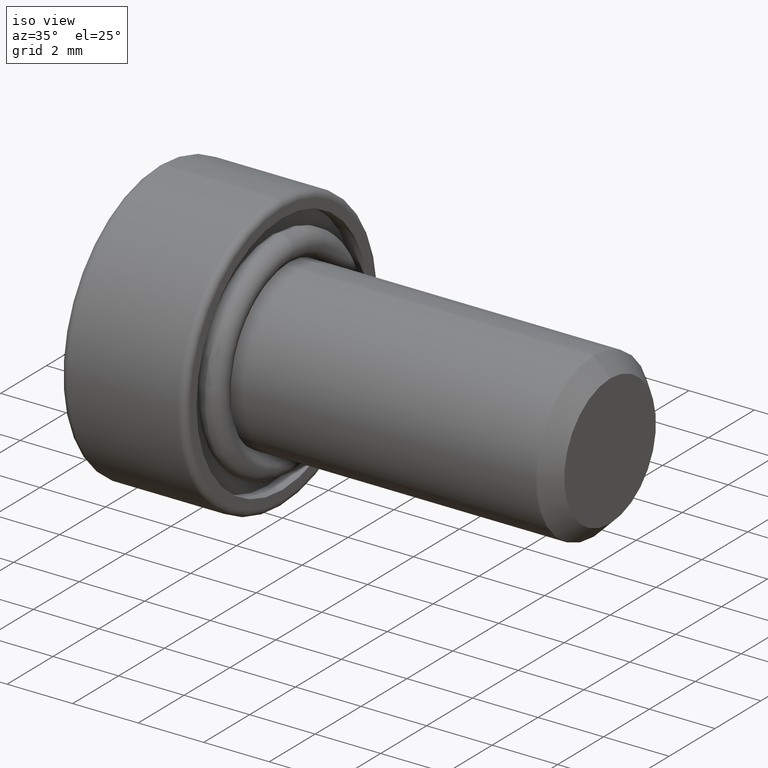
[diagram: clean part render]
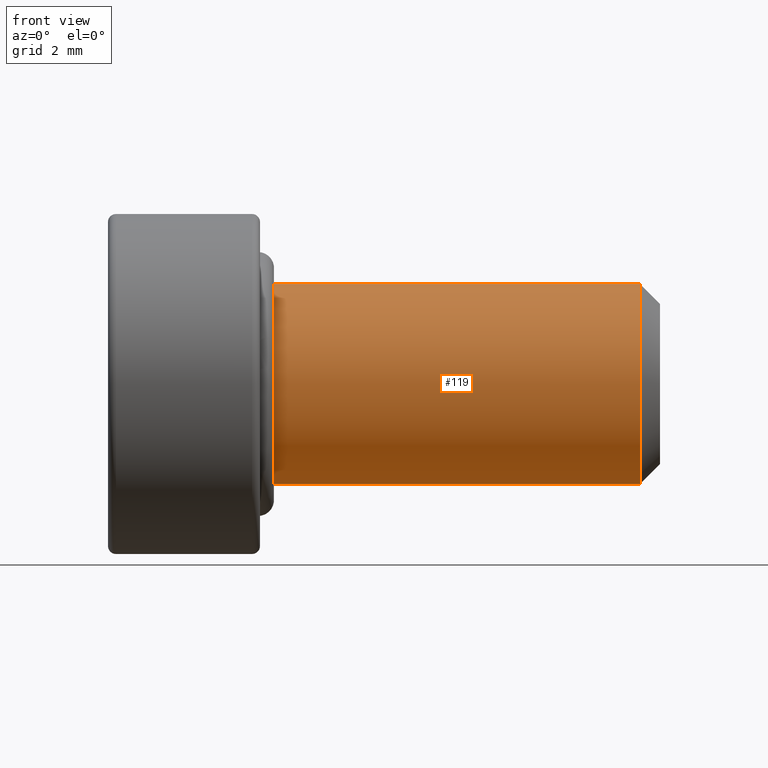
[diagram: tour spotlight — one face highlighted and labeled with its STEP entity id]
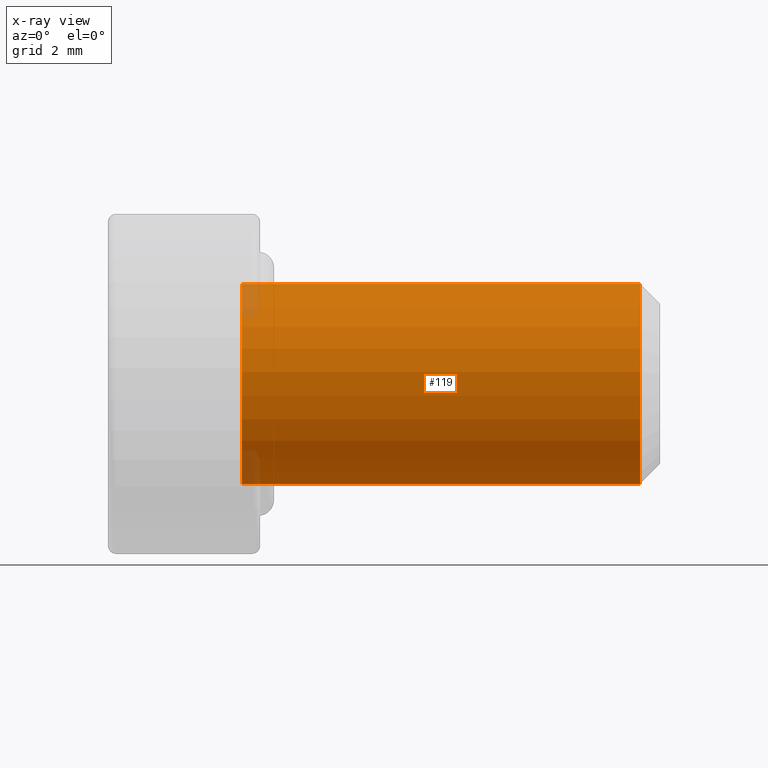
[diagram: x-ray of the same camera — body ghosted, this tour face saturated]
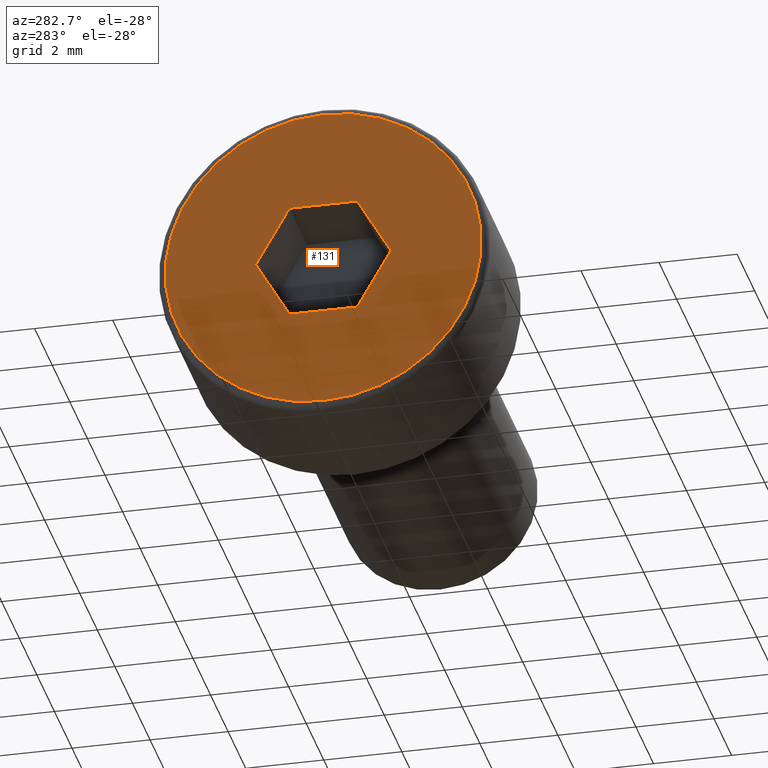
[diagram: tour spotlight — one face highlighted and labeled with its STEP entity id]
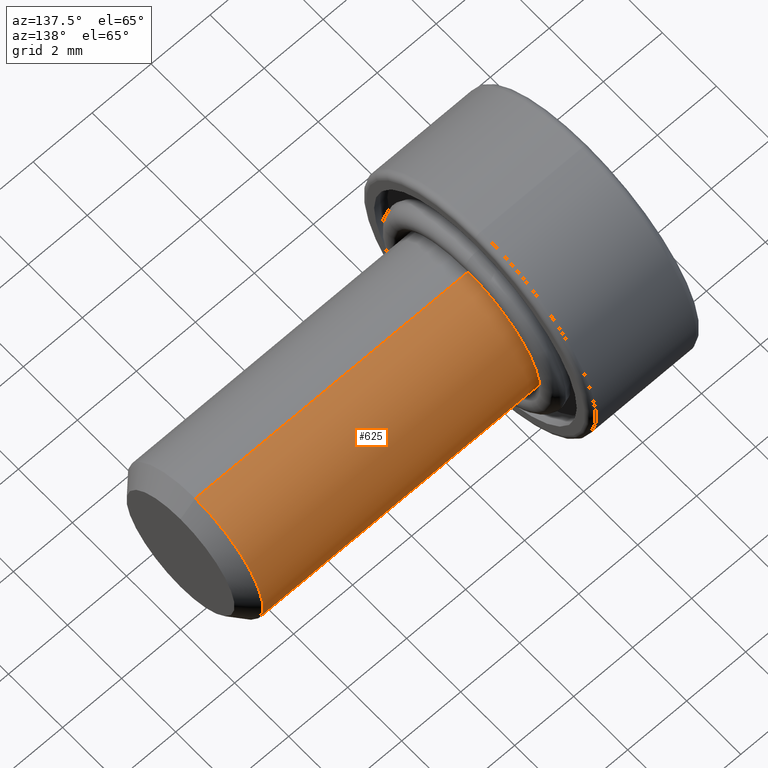
[diagram: tour spotlight — one face highlighted and labeled with its STEP entity id]
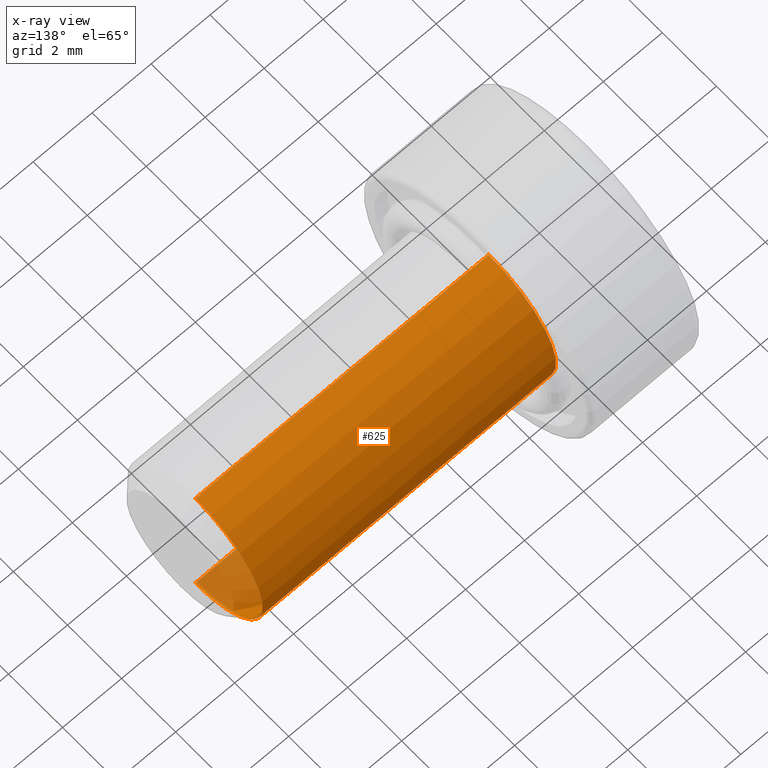
[diagram: x-ray of the same camera — body ghosted, this tour face saturated]
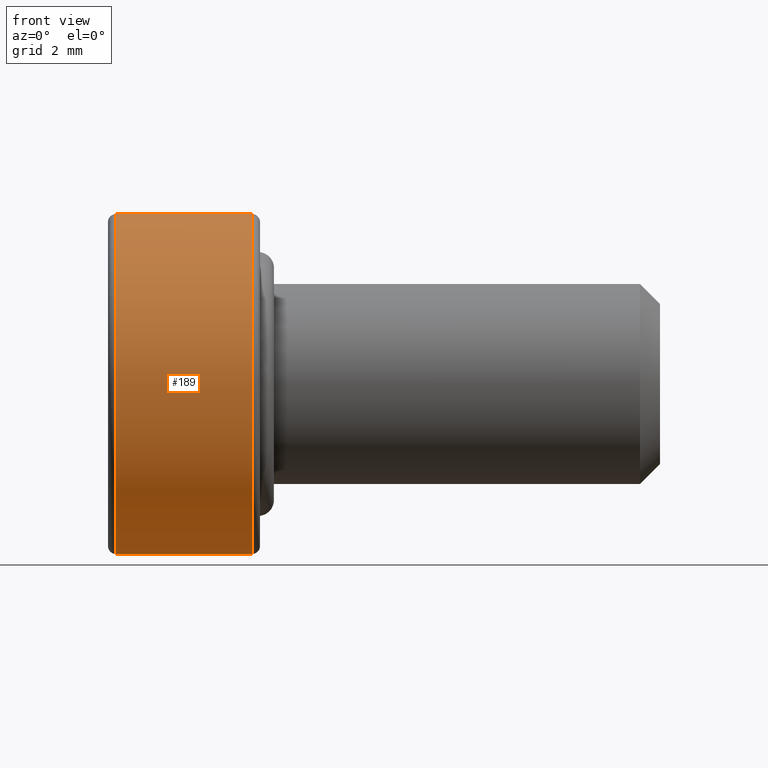
[diagram: tour spotlight — one face highlighted and labeled with its STEP entity id]
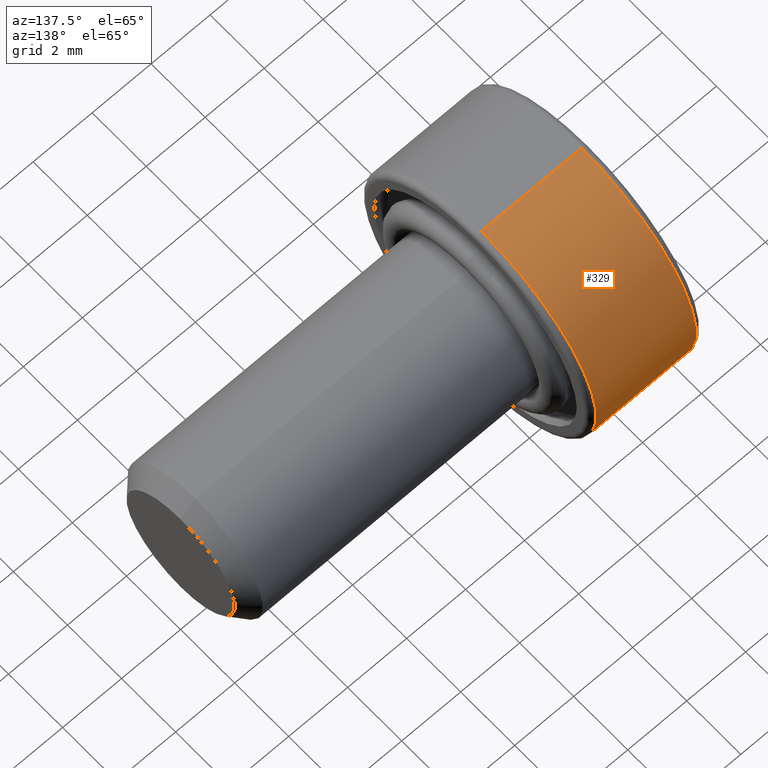
[diagram: tour spotlight — one face highlighted and labeled with its STEP entity id]
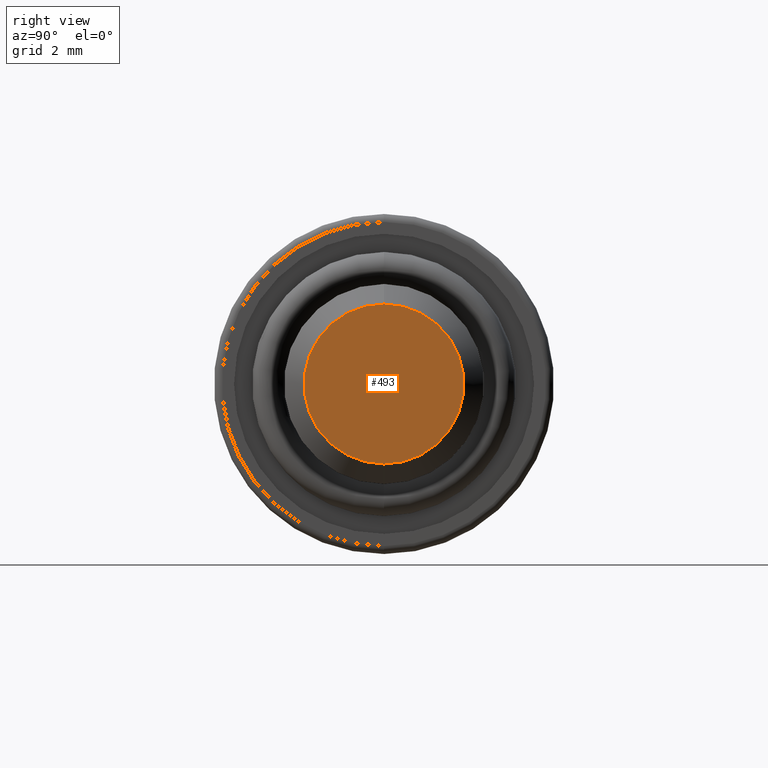
[diagram: tour spotlight — one face highlighted and labeled with its STEP entity id]
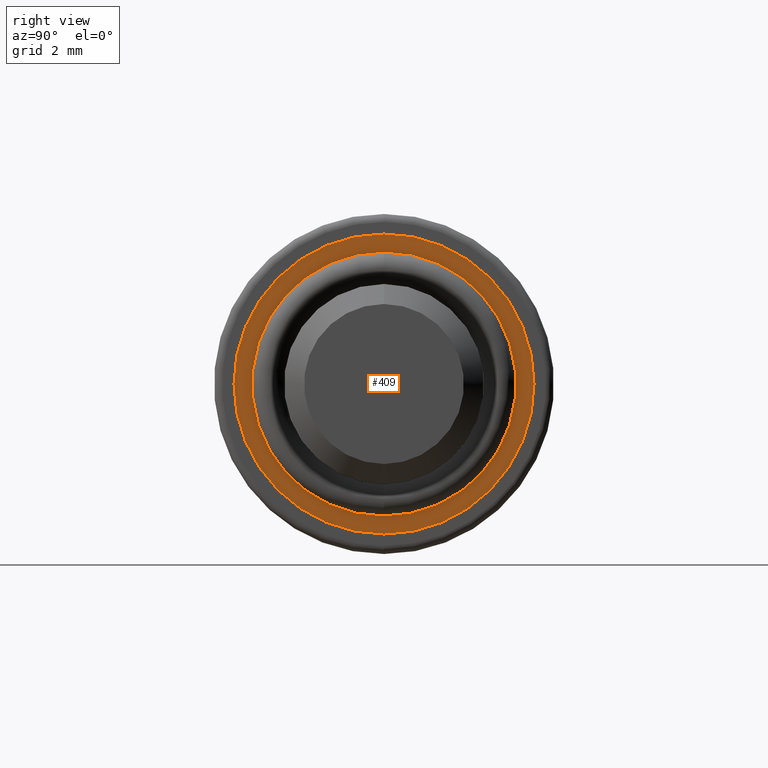
[diagram: tour spotlight — one face highlighted and labeled with its STEP entity id]
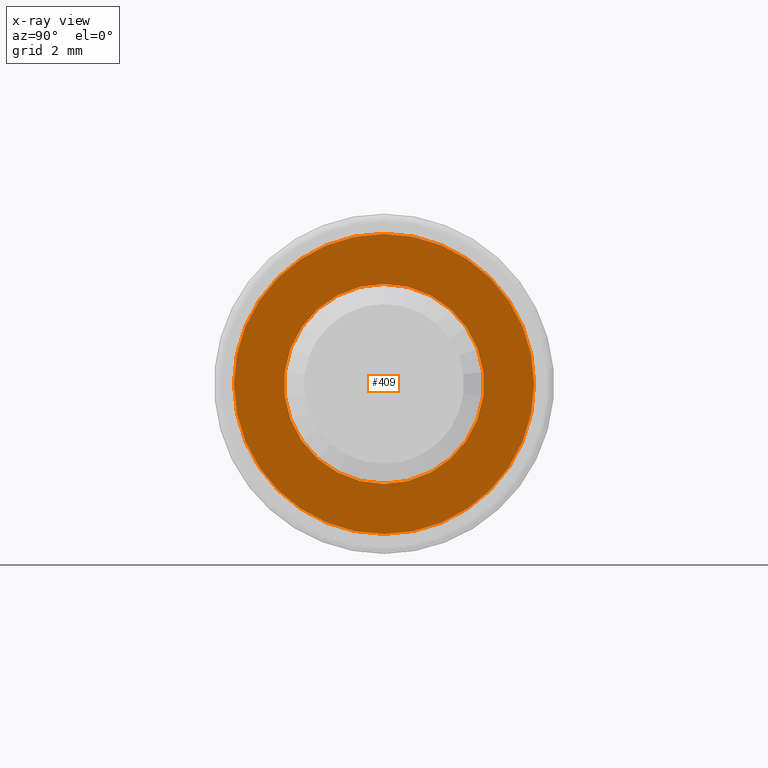
[diagram: x-ray of the same camera — body ghosted, this tour face saturated]
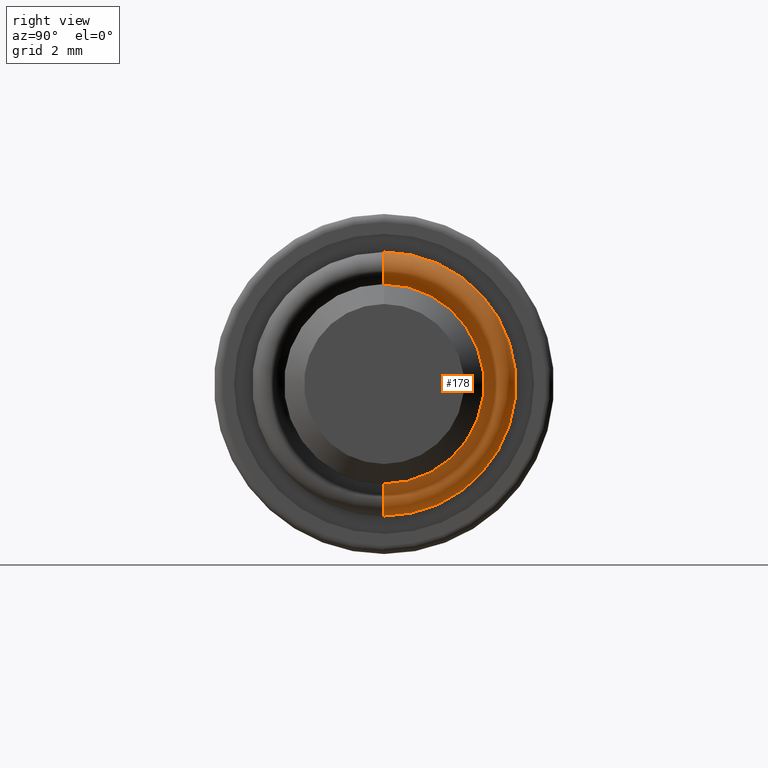
[diagram: tour spotlight — one face highlighted and labeled with its STEP entity id]
A machine part: a face-by-face anatomy tour. The part has 27 B-rep faces; the first image is the clean iso view, then the 8 largest visible faces are spotlighted one at a time (largest first), each with its STEP entity span.

Face 1 — front view, entity #119. An x-ray twin of the same camera follows (body ghosted, this face saturated) — the face is partly hidden behind the body. In plain terms, the highlighted cylindrical surface (partial cylindrical patch) has radius 2.5 mm, axis along (-1, -0, -0).
Definition (entity closure, byte-faithful):
#11 = CYLINDRICAL_SURFACE ( 'NONE', #643, 2.500000000000000000 ) ;
#57 = CARTESIAN_POINT ( 'NONE',  ( -0.4500000000000000100, 3.061616997868383100E-016, -2.500000000000000000 ) ) ;
#82 = AXIS2_PLACEMENT_3D ( 'NONE', #234, #241, #666 ) ;
#119 = ADVANCED_FACE ( 'NONE', ( #213 ), #11, .T. ) ;
#138 = EDGE_CURVE ( 'NONE', #384, #374, #677, .T. ) ;
#192 = VECTOR ( 'NONE', #378, 1000.000000000000000 ) ;
#209 = CARTESIAN_POINT ( 'NONE',  ( -0.4500000000000000100, 0.0000000000000000000, 2.500000000000000000 ) ) ;
#213 = FACE_OUTER_BOUND ( 'NONE', #783, .T. ) ;
#216 = VERTEX_POINT ( 'NONE', #57 ) ;
#218 = AXIS2_PLACEMENT_3D ( 'NONE', #633, #804, #250 ) ;
#234 = CARTESIAN_POINT ( 'NONE',  ( -0.4500000000000000100, 0.0000000000000000000, 0.0000000000000000000 ) ) ;
#241 = DIRECTION ( 'NONE',  ( 1.000000000000000000, 0.0000000000000000000, 0.0000000000000000000 ) ) ;
#250 = DIRECTION ( 'NONE',  ( 0.0000000000000000000, 0.0000000000000000000, -1.000000000000000000 ) ) ;
#281 = CARTESIAN_POINT ( 'NONE',  ( 10.00000000000000000, 3.061616997868383100E-016, -2.500000000000000000 ) ) ;
#313 = ORIENTED_EDGE ( 'NONE', *, *, #138, .T. ) ;
#322 = DIRECTION ( 'NONE',  ( 0.0000000000000000000, 0.0000000000000000000, 1.000000000000000000 ) ) ;
#348 = ORIENTED_EDGE ( 'NONE', *, *, #755, .T. ) ;
#365 = CARTESIAN_POINT ( 'NONE',  ( 9.500000000000000000, 0.0000000000000000000, 2.500000000000000000 ) ) ;
#374 = VERTEX_POINT ( 'NONE', #209 ) ;
#378 = DIRECTION ( 'NONE',  ( -1.000000000000000000, -0.0000000000000000000, -0.0000000000000000000 ) ) ;
#384 = VERTEX_POINT ( 'NONE', #365 ) ;
#385 = DIRECTION ( 'NONE',  ( -1.000000000000000000, -0.0000000000000000000, -0.0000000000000000000 ) ) ;
#388 = CARTESIAN_POINT ( 'NONE',  ( 10.00000000000000000, 0.0000000000000000000, 0.0000000000000000000 ) ) ;
#418 = CARTESIAN_POINT ( 'NONE',  ( 10.00000000000000000, 0.0000000000000000000, 2.500000000000000000 ) ) ;
#442 = CIRCLE ( 'NONE', #82, 2.500000000000000000 ) ;
#457 = CIRCLE ( 'NONE', #218, 2.500000000000000000 ) ;
#539 = VERTEX_POINT ( 'NONE', #545 ) ;
#545 = CARTESIAN_POINT ( 'NONE',  ( 9.500000000000000000, 3.061616997868383100E-016, -2.500000000000000000 ) ) ;
#600 = DIRECTION ( 'NONE',  ( -1.000000000000000000, -0.0000000000000000000, -0.0000000000000000000 ) ) ;
#618 = ORIENTED_EDGE ( 'NONE', *, *, #772, .T. ) ;
#621 = VECTOR ( 'NONE', #600, 1000.000000000000000 ) ;
#633 = CARTESIAN_POINT ( 'NONE',  ( 9.500000000000000000, 0.0000000000000000000, 0.0000000000000000000 ) ) ;
#643 = AXIS2_PLACEMENT_3D ( 'NONE', #388, #385, #322 ) ;
#666 = DIRECTION ( 'NONE',  ( 0.0000000000000000000, 0.0000000000000000000, -1.000000000000000000 ) ) ;
#673 = EDGE_CURVE ( 'NONE', #539, #216, #776, .T. ) ;
#677 = LINE ( 'NONE', #418, #192 ) ;
#755 = EDGE_CURVE ( 'NONE', #374, #216, #442, .T. ) ;
#772 = EDGE_CURVE ( 'NONE', #539, #384, #457, .T. ) ;
#776 = LINE ( 'NONE', #281, #621 ) ;
#783 = EDGE_LOOP ( 'NONE', ( #793, #618, #313, #348 ) ) ;
#793 = ORIENTED_EDGE ( 'NONE', *, *, #673, .F. ) ;
#804 = DIRECTION ( 'NONE',  ( -1.000000000000000000, 0.0000000000000000000, 0.0000000000000000000 ) ) ;

Face 2 — auxiliary view, entity #131. In plain terms, the highlighted planar face has unit normal (1, 0, 0).
Definition (entity closure, byte-faithful):
#3 = ORIENTED_EDGE ( 'NONE', *, *, #347, .F. ) ;
#29 = VERTEX_POINT ( 'NONE', #76 ) ;
#32 = CARTESIAN_POINT ( 'NONE',  ( -3.799999999999999800, 0.8660254037844360400, -1.499999999999995300 ) ) ;
#34 = DIRECTION ( 'NONE',  ( 0.0000000000000000000, 0.0000000000000000000, -1.000000000000000000 ) ) ;
#36 = FACE_OUTER_BOUND ( 'NONE', #93, .T. ) ;
#51 = DIRECTION ( 'NONE',  ( 0.0000000000000000000, -1.000000000000000000, -1.251928832280969600E-016 ) ) ;
#65 = CARTESIAN_POINT ( 'NONE',  ( -3.799999999999999800, -0.8660254037844348200, 1.499999999999994400 ) ) ;
#68 = EDGE_CURVE ( 'NONE', #398, #29, #239, .T. ) ;
#70 = VECTOR ( 'NONE', #51, 1000.000000000000000 ) ;
#76 = CARTESIAN_POINT ( 'NONE',  ( -3.799999999999999800, 5.082284216461517100E-016, 4.050000000000001600 ) ) ;
#93 = EDGE_LOOP ( 'NONE', ( #631, #558 ) ) ;
#116 = EDGE_CURVE ( 'NONE', #623, #553, #555, .T. ) ;
#118 = CIRCLE ( 'NONE', #321, 4.050000000000001600 ) ;
#130 = VERTEX_POINT ( 'NONE', #447 ) ;
#131 = ADVANCED_FACE ( 'NONE', ( #358, #36 ), #430, .F. ) ;
#152 = DIRECTION ( 'NONE',  ( 0.0000000000000000000, 0.0000000000000000000, -1.000000000000000000 ) ) ;
#167 = DIRECTION ( 'NONE',  ( -1.000000000000000000, -0.0000000000000000000, -0.0000000000000000000 ) ) ;
#170 = ORIENTED_EDGE ( 'NONE', *, *, #208, .F. ) ;
#185 = VERTEX_POINT ( 'NONE', #602 ) ;
#208 = EDGE_CURVE ( 'NONE', #185, #649, #266, .T. ) ;
#214 = DIRECTION ( 'NONE',  ( -0.0000000000000000000, 1.000000000000000000, 8.763501825966792400E-016 ) ) ;
#230 = CARTESIAN_POINT ( 'NONE',  ( -3.799999999999999800, 0.0000000000000000000, 0.0000000000000000000 ) ) ;
#231 = ORIENTED_EDGE ( 'NONE', *, *, #587, .F. ) ;
#235 = DIRECTION ( 'NONE',  ( -1.000000000000000000, -0.0000000000000000000, -0.0000000000000000000 ) ) ;
#236 = CARTESIAN_POINT ( 'NONE',  ( -3.799999999999999800, -0.8660254037844362700, -1.499999999999995600 ) ) ;
#239 = CIRCLE ( 'NONE', #521, 4.050000000000001600 ) ;
#266 = LINE ( 'NONE', #494, #747 ) ;
#288 = DIRECTION ( 'NONE',  ( 0.0000000000000000000, 0.0000000000000000000, -1.000000000000000000 ) ) ;
#289 = CARTESIAN_POINT ( 'NONE',  ( -3.799999999999999800, 0.0000000000000000000, 0.0000000000000000000 ) ) ;
#290 = VECTOR ( 'NONE', #214, 1000.000000000000000 ) ;
#316 = EDGE_LOOP ( 'NONE', ( #3, #170, #231, #650, #749, #481 ) ) ;
#321 = AXIS2_PLACEMENT_3D ( 'NONE', #617, #167, #34 ) ;
#324 = VERTEX_POINT ( 'NONE', #343 ) ;
#343 = CARTESIAN_POINT ( 'NONE',  ( -3.799999999999999800, -0.8660254037844362700, -1.499999999999995600 ) ) ;
#347 = EDGE_CURVE ( 'NONE', #649, #324, #455, .T. ) ;
#353 = DIRECTION ( 'NONE',  ( 0.0000000000000000000, -0.4999999999999998900, 0.8660254037844386000 ) ) ;
#355 = DIRECTION ( 'NONE',  ( 0.0000000000000000000, 0.5000000000000011100, 0.8660254037844380400 ) ) ;
#358 = FACE_BOUND ( 'NONE', #316, .T. ) ;
#368 = CARTESIAN_POINT ( 'NONE',  ( -3.799999999999999800, -1.732050807568872500, 3.588059837047438300E-016 ) ) ;
#398 = VERTEX_POINT ( 'NONE', #470 ) ;
#403 = VECTOR ( 'NONE', #768, 1000.000000000000000 ) ;
#430 = PLANE ( 'NONE',  #713 ) ;
#447 = CARTESIAN_POINT ( 'NONE',  ( -3.799999999999999800, 0.8660254037844367100, 1.499999999999996000 ) ) ;
#455 = LINE ( 'NONE', #655, #70 ) ;
#470 = CARTESIAN_POINT ( 'NONE',  ( -3.799999999999999800, 0.0000000000000000000, -4.050000000000001600 ) ) ;
#481 = ORIENTED_EDGE ( 'NONE', *, *, #640, .F. ) ;
#494 = CARTESIAN_POINT ( 'NONE',  ( -3.799999999999999800, 0.8660254037844360400, -1.499999999999995300 ) ) ;
#518 = EDGE_CURVE ( 'NONE', #553, #130, #763, .T. ) ;
#521 = AXIS2_PLACEMENT_3D ( 'NONE', #230, #235, #288 ) ;
#553 = VERTEX_POINT ( 'NONE', #65 ) ;
#555 = LINE ( 'NONE', #368, #686 ) ;
#558 = ORIENTED_EDGE ( 'NONE', *, *, #813, .T. ) ;
#565 = LINE ( 'NONE', #642, #403 ) ;
#587 = EDGE_CURVE ( 'NONE', #130, #185, #565, .T. ) ;
#602 = CARTESIAN_POINT ( 'NONE',  ( -3.799999999999999800, 1.732050807568872500, -3.579244311116258100E-017 ) ) ;
#617 = CARTESIAN_POINT ( 'NONE',  ( -3.799999999999999800, 0.0000000000000000000, 0.0000000000000000000 ) ) ;
#623 = VERTEX_POINT ( 'NONE', #652 ) ;
#631 = ORIENTED_EDGE ( 'NONE', *, *, #68, .T. ) ;
#640 = EDGE_CURVE ( 'NONE', #324, #623, #693, .T. ) ;
#642 = CARTESIAN_POINT ( 'NONE',  ( -3.799999999999999800, 1.732050807568872500, -3.579244311116258100E-017 ) ) ;
#649 = VERTEX_POINT ( 'NONE', #32 ) ;
#650 = ORIENTED_EDGE ( 'NONE', *, *, #518, .F. ) ;
#652 = CARTESIAN_POINT ( 'NONE',  ( -3.799999999999999800, -1.732050807568872500, 3.588059837047438300E-016 ) ) ;
#655 = CARTESIAN_POINT ( 'NONE',  ( -3.799999999999999800, 0.8660254037844360400, -1.499999999999995300 ) ) ;
#663 = VECTOR ( 'NONE', #353, 1000.000000000000200 ) ;
#686 = VECTOR ( 'NONE', #355, 1000.000000000000100 ) ;
#693 = LINE ( 'NONE', #236, #663 ) ;
#711 = DIRECTION ( 'NONE',  ( -0.0000000000000000000, -0.5000000000000003300, -0.8660254037844383700 ) ) ;
#713 = AXIS2_PLACEMENT_3D ( 'NONE', #289, #738, #152 ) ;
#738 = DIRECTION ( 'NONE',  ( 1.000000000000000000, 0.0000000000000000000, 0.0000000000000000000 ) ) ;
#747 = VECTOR ( 'NONE', #711, 1000.000000000000100 ) ;
#749 = ORIENTED_EDGE ( 'NONE', *, *, #116, .F. ) ;
#759 = CARTESIAN_POINT ( 'NONE',  ( -3.799999999999999800, 0.8660254037844367100, 1.499999999999996000 ) ) ;
#763 = LINE ( 'NONE', #759, #290 ) ;
#768 = DIRECTION ( 'NONE',  ( -0.0000000000000000000, 0.4999999999999998300, -0.8660254037844387100 ) ) ;
#813 = EDGE_CURVE ( 'NONE', #29, #398, #118, .T. ) ;

Face 3 — auxiliary view, entity #625. An x-ray twin of the same camera follows (body ghosted, this face saturated) — the face is partly hidden behind the body. In plain terms, the highlighted cylindrical surface (partial cylindrical patch) has radius 2.5 mm, axis along (-1, -0, -0).
Definition (entity closure, byte-faithful):
#46 = ORIENTED_EDGE ( 'NONE', *, *, #138, .F. ) ;
#57 = CARTESIAN_POINT ( 'NONE',  ( -0.4500000000000000100, 3.061616997868383100E-016, -2.500000000000000000 ) ) ;
#101 = CIRCLE ( 'NONE', #264, 2.500000000000000000 ) ;
#138 = EDGE_CURVE ( 'NONE', #384, #374, #677, .T. ) ;
#172 = AXIS2_PLACEMENT_3D ( 'NONE', #315, #423, #556 ) ;
#192 = VECTOR ( 'NONE', #378, 1000.000000000000000 ) ;
#201 = CYLINDRICAL_SURFACE ( 'NONE', #172, 2.500000000000000000 ) ;
#209 = CARTESIAN_POINT ( 'NONE',  ( -0.4500000000000000100, 0.0000000000000000000, 2.500000000000000000 ) ) ;
#216 = VERTEX_POINT ( 'NONE', #57 ) ;
#243 = ORIENTED_EDGE ( 'NONE', *, *, #802, .T. ) ;
#248 = FACE_OUTER_BOUND ( 'NONE', #688, .T. ) ;
#264 = AXIS2_PLACEMENT_3D ( 'NONE', #295, #301, #327 ) ;
#281 = CARTESIAN_POINT ( 'NONE',  ( 10.00000000000000000, 3.061616997868383100E-016, -2.500000000000000000 ) ) ;
#295 = CARTESIAN_POINT ( 'NONE',  ( -0.4500000000000000100, 0.0000000000000000000, 0.0000000000000000000 ) ) ;
#301 = DIRECTION ( 'NONE',  ( 1.000000000000000000, 0.0000000000000000000, 0.0000000000000000000 ) ) ;
#305 = DIRECTION ( 'NONE',  ( -1.000000000000000000, 0.0000000000000000000, 0.0000000000000000000 ) ) ;
#315 = CARTESIAN_POINT ( 'NONE',  ( 10.00000000000000000, 0.0000000000000000000, 0.0000000000000000000 ) ) ;
#327 = DIRECTION ( 'NONE',  ( 0.0000000000000000000, 0.0000000000000000000, -1.000000000000000000 ) ) ;
#365 = CARTESIAN_POINT ( 'NONE',  ( 9.500000000000000000, 0.0000000000000000000, 2.500000000000000000 ) ) ;
#374 = VERTEX_POINT ( 'NONE', #209 ) ;
#378 = DIRECTION ( 'NONE',  ( -1.000000000000000000, -0.0000000000000000000, -0.0000000000000000000 ) ) ;
#384 = VERTEX_POINT ( 'NONE', #365 ) ;
#410 = ORIENTED_EDGE ( 'NONE', *, *, #589, .T. ) ;
#418 = CARTESIAN_POINT ( 'NONE',  ( 10.00000000000000000, 0.0000000000000000000, 2.500000000000000000 ) ) ;
#423 = DIRECTION ( 'NONE',  ( -1.000000000000000000, -0.0000000000000000000, -0.0000000000000000000 ) ) ;
#477 = ORIENTED_EDGE ( 'NONE', *, *, #673, .T. ) ;
#491 = CARTESIAN_POINT ( 'NONE',  ( 9.500000000000000000, 0.0000000000000000000, 0.0000000000000000000 ) ) ;
#513 = DIRECTION ( 'NONE',  ( 0.0000000000000000000, 0.0000000000000000000, -1.000000000000000000 ) ) ;
#539 = VERTEX_POINT ( 'NONE', #545 ) ;
#545 = CARTESIAN_POINT ( 'NONE',  ( 9.500000000000000000, 3.061616997868383100E-016, -2.500000000000000000 ) ) ;
#556 = DIRECTION ( 'NONE',  ( 0.0000000000000000000, 0.0000000000000000000, 1.000000000000000000 ) ) ;
#589 = EDGE_CURVE ( 'NONE', #384, #539, #607, .T. ) ;
#600 = DIRECTION ( 'NONE',  ( -1.000000000000000000, -0.0000000000000000000, -0.0000000000000000000 ) ) ;
#607 = CIRCLE ( 'NONE', #785, 2.500000000000000000 ) ;
#621 = VECTOR ( 'NONE', #600, 1000.000000000000000 ) ;
#625 = ADVANCED_FACE ( 'NONE', ( #248 ), #201, .T. ) ;
#673 = EDGE_CURVE ( 'NONE', #539, #216, #776, .T. ) ;
#677 = LINE ( 'NONE', #418, #192 ) ;
#688 = EDGE_LOOP ( 'NONE', ( #410, #477, #243, #46 ) ) ;
#776 = LINE ( 'NONE', #281, #621 ) ;
#785 = AXIS2_PLACEMENT_3D ( 'NONE', #491, #305, #513 ) ;
#802 = EDGE_CURVE ( 'NONE', #216, #374, #101, .T. ) ;

Face 4 — front view, entity #189. In plain terms, the highlighted cylindrical surface (partial cylindrical patch) has radius 4.25 mm, axis along (1, 0, 0).
Definition (entity closure, byte-faithful):
#18 = VERTEX_POINT ( 'NONE', #371 ) ;
#21 = ORIENTED_EDGE ( 'NONE', *, *, #188, .T. ) ;
#45 = ORIENTED_EDGE ( 'NONE', *, *, #732, .T. ) ;
#85 = LINE ( 'NONE', #465, #575 ) ;
#87 = CYLINDRICAL_SURFACE ( 'NONE', #424, 4.250000000000000900 ) ;
#110 = FACE_OUTER_BOUND ( 'NONE', #407, .T. ) ;
#128 = CIRCLE ( 'NONE', #246, 4.250000000000000900 ) ;
#144 = DIRECTION ( 'NONE',  ( 1.000000000000000000, 0.0000000000000000000, 0.0000000000000000000 ) ) ;
#159 = DIRECTION ( 'NONE',  ( 0.0000000000000000000, 0.0000000000000000000, -1.000000000000000000 ) ) ;
#163 = DIRECTION ( 'NONE',  ( 1.000000000000000000, 0.0000000000000000000, 0.0000000000000000000 ) ) ;
#188 = EDGE_CURVE ( 'NONE', #583, #684, #128, .T. ) ;
#189 = ADVANCED_FACE ( 'NONE', ( #110 ), #87, .T. ) ;
#246 = AXIS2_PLACEMENT_3D ( 'NONE', #798, #500, #159 ) ;
#258 = VERTEX_POINT ( 'NONE', #436 ) ;
#350 = CARTESIAN_POINT ( 'NONE',  ( -0.2000000000000000900, 0.0000000000000000000, 0.0000000000000000000 ) ) ;
#362 = CARTESIAN_POINT ( 'NONE',  ( -3.600000000000000100, 5.204748896376250700E-016, 4.250000000000000900 ) ) ;
#371 = CARTESIAN_POINT ( 'NONE',  ( -0.2000000000000000900, 5.204748896376250700E-016, 4.250000000000000900 ) ) ;
#407 = EDGE_LOOP ( 'NONE', ( #476, #21, #45, #775 ) ) ;
#411 = DIRECTION ( 'NONE',  ( -1.000000000000000000, -0.0000000000000000000, -0.0000000000000000000 ) ) ;
#424 = AXIS2_PLACEMENT_3D ( 'NONE', #478, #535, #541 ) ;
#434 = CARTESIAN_POINT ( 'NONE',  ( -3.600000000000000100, 0.0000000000000000000, -4.250000000000000900 ) ) ;
#436 = CARTESIAN_POINT ( 'NONE',  ( -0.2000000000000000900, 0.0000000000000000000, -4.250000000000000900 ) ) ;
#465 = CARTESIAN_POINT ( 'NONE',  ( -3.799999999999999800, 5.204748896376250700E-016, 4.250000000000000900 ) ) ;
#476 = ORIENTED_EDGE ( 'NONE', *, *, #524, .F. ) ;
#478 = CARTESIAN_POINT ( 'NONE',  ( -3.799999999999999800, 0.0000000000000000000, 0.0000000000000000000 ) ) ;
#500 = DIRECTION ( 'NONE',  ( 1.000000000000000000, 0.0000000000000000000, 0.0000000000000000000 ) ) ;
#519 = DIRECTION ( 'NONE',  ( 0.0000000000000000000, 0.0000000000000000000, -1.000000000000000000 ) ) ;
#524 = EDGE_CURVE ( 'NONE', #583, #18, #85, .T. ) ;
#535 = DIRECTION ( 'NONE',  ( 1.000000000000000000, 0.0000000000000000000, 0.0000000000000000000 ) ) ;
#541 = DIRECTION ( 'NONE',  ( 0.0000000000000000000, 0.0000000000000000000, -1.000000000000000000 ) ) ;
#554 = EDGE_CURVE ( 'NONE', #258, #18, #745, .T. ) ;
#575 = VECTOR ( 'NONE', #144, 1000.000000000000000 ) ;
#583 = VERTEX_POINT ( 'NONE', #362 ) ;
#595 = VECTOR ( 'NONE', #163, 1000.000000000000000 ) ;
#684 = VERTEX_POINT ( 'NONE', #434 ) ;
#715 = CARTESIAN_POINT ( 'NONE',  ( -3.799999999999999800, 0.0000000000000000000, -4.250000000000000900 ) ) ;
#732 = EDGE_CURVE ( 'NONE', #684, #258, #756, .T. ) ;
#741 = AXIS2_PLACEMENT_3D ( 'NONE', #350, #411, #519 ) ;
#745 = CIRCLE ( 'NONE', #741, 4.250000000000000900 ) ;
#756 = LINE ( 'NONE', #715, #595 ) ;
#775 = ORIENTED_EDGE ( 'NONE', *, *, #554, .T. ) ;
#798 = CARTESIAN_POINT ( 'NONE',  ( -3.600000000000000100, 0.0000000000000000000, 0.0000000000000000000 ) ) ;

Face 5 — auxiliary view, entity #329. In plain terms, the highlighted cylindrical surface (partial cylindrical patch) has radius 4.25 mm, axis along (1, 0, 0).
Definition (entity closure, byte-faithful):
#6 = EDGE_CURVE ( 'NONE', #684, #583, #279, .T. ) ;
#18 = VERTEX_POINT ( 'NONE', #371 ) ;
#31 = EDGE_LOOP ( 'NONE', ( #483, #107, #269, #332 ) ) ;
#85 = LINE ( 'NONE', #465, #575 ) ;
#107 = ORIENTED_EDGE ( 'NONE', *, *, #524, .T. ) ;
#117 = FACE_OUTER_BOUND ( 'NONE', #31, .T. ) ;
#144 = DIRECTION ( 'NONE',  ( 1.000000000000000000, 0.0000000000000000000, 0.0000000000000000000 ) ) ;
#163 = DIRECTION ( 'NONE',  ( 1.000000000000000000, 0.0000000000000000000, 0.0000000000000000000 ) ) ;
#206 = EDGE_CURVE ( 'NONE', #18, #258, #764, .T. ) ;
#258 = VERTEX_POINT ( 'NONE', #436 ) ;
#269 = ORIENTED_EDGE ( 'NONE', *, *, #206, .T. ) ;
#277 = CYLINDRICAL_SURFACE ( 'NONE', #588, 4.250000000000000900 ) ;
#279 = CIRCLE ( 'NONE', #314, 4.250000000000000900 ) ;
#291 = DIRECTION ( 'NONE',  ( 0.0000000000000000000, 0.0000000000000000000, -1.000000000000000000 ) ) ;
#314 = AXIS2_PLACEMENT_3D ( 'NONE', #440, #487, #807 ) ;
#329 = ADVANCED_FACE ( 'NONE', ( #117 ), #277, .T. ) ;
#332 = ORIENTED_EDGE ( 'NONE', *, *, #732, .F. ) ;
#362 = CARTESIAN_POINT ( 'NONE',  ( -3.600000000000000100, 5.204748896376250700E-016, 4.250000000000000900 ) ) ;
#371 = CARTESIAN_POINT ( 'NONE',  ( -0.2000000000000000900, 5.204748896376250700E-016, 4.250000000000000900 ) ) ;
#386 = AXIS2_PLACEMENT_3D ( 'NONE', #421, #729, #291 ) ;
#400 = DIRECTION ( 'NONE',  ( 0.0000000000000000000, 0.0000000000000000000, -1.000000000000000000 ) ) ;
#416 = CARTESIAN_POINT ( 'NONE',  ( -3.799999999999999800, 0.0000000000000000000, 0.0000000000000000000 ) ) ;
#421 = CARTESIAN_POINT ( 'NONE',  ( -0.2000000000000000900, 0.0000000000000000000, 0.0000000000000000000 ) ) ;
#434 = CARTESIAN_POINT ( 'NONE',  ( -3.600000000000000100, 0.0000000000000000000, -4.250000000000000900 ) ) ;
#436 = CARTESIAN_POINT ( 'NONE',  ( -0.2000000000000000900, 0.0000000000000000000, -4.250000000000000900 ) ) ;
#440 = CARTESIAN_POINT ( 'NONE',  ( -3.600000000000000100, 0.0000000000000000000, 0.0000000000000000000 ) ) ;
#465 = CARTESIAN_POINT ( 'NONE',  ( -3.799999999999999800, 5.204748896376250700E-016, 4.250000000000000900 ) ) ;
#483 = ORIENTED_EDGE ( 'NONE', *, *, #6, .T. ) ;
#487 = DIRECTION ( 'NONE',  ( 1.000000000000000000, 0.0000000000000000000, 0.0000000000000000000 ) ) ;
#524 = EDGE_CURVE ( 'NONE', #583, #18, #85, .T. ) ;
#575 = VECTOR ( 'NONE', #144, 1000.000000000000000 ) ;
#583 = VERTEX_POINT ( 'NONE', #362 ) ;
#588 = AXIS2_PLACEMENT_3D ( 'NONE', #416, #704, #400 ) ;
#595 = VECTOR ( 'NONE', #163, 1000.000000000000000 ) ;
#684 = VERTEX_POINT ( 'NONE', #434 ) ;
#704 = DIRECTION ( 'NONE',  ( 1.000000000000000000, 0.0000000000000000000, 0.0000000000000000000 ) ) ;
#715 = CARTESIAN_POINT ( 'NONE',  ( -3.799999999999999800, 0.0000000000000000000, -4.250000000000000900 ) ) ;
#729 = DIRECTION ( 'NONE',  ( -1.000000000000000000, -0.0000000000000000000, -0.0000000000000000000 ) ) ;
#732 = EDGE_CURVE ( 'NONE', #684, #258, #756, .T. ) ;
#756 = LINE ( 'NONE', #715, #595 ) ;
#764 = CIRCLE ( 'NONE', #386, 4.250000000000000900 ) ;
#807 = DIRECTION ( 'NONE',  ( 0.0000000000000000000, 0.0000000000000000000, -1.000000000000000000 ) ) ;

Face 6 — right view, entity #493. In plain terms, the highlighted planar face has unit normal (1, 0, 0).
Definition (entity closure, byte-faithful):
#58 = CIRCLE ( 'NONE', #546, 2.000000000000001800 ) ;
#137 = DIRECTION ( 'NONE',  ( 1.000000000000000000, 0.0000000000000000000, 0.0000000000000000000 ) ) ;
#161 = EDGE_CURVE ( 'NONE', #730, #271, #506, .T. ) ;
#224 = CARTESIAN_POINT ( 'NONE',  ( 10.00000000000000000, 0.0000000000000000000, 2.000000000000001800 ) ) ;
#240 = EDGE_CURVE ( 'NONE', #271, #730, #58, .T. ) ;
#271 = VERTEX_POINT ( 'NONE', #795 ) ;
#337 = DIRECTION ( 'NONE',  ( 0.0000000000000000000, 0.0000000000000000000, -1.000000000000000000 ) ) ;
#357 = PLANE ( 'NONE',  #624 ) ;
#433 = DIRECTION ( 'NONE',  ( 0.0000000000000000000, 0.0000000000000000000, -1.000000000000000000 ) ) ;
#473 = EDGE_LOOP ( 'NONE', ( #634, #740 ) ) ;
#493 = ADVANCED_FACE ( 'NONE', ( #630 ), #357, .T. ) ;
#505 = CARTESIAN_POINT ( 'NONE',  ( 10.00000000000000000, 0.0000000000000000000, 0.0000000000000000000 ) ) ;
#506 = CIRCLE ( 'NONE', #601, 2.000000000000001800 ) ;
#546 = AXIS2_PLACEMENT_3D ( 'NONE', #769, #605, #433 ) ;
#601 = AXIS2_PLACEMENT_3D ( 'NONE', #505, #680, #716 ) ;
#605 = DIRECTION ( 'NONE',  ( 1.000000000000000000, 0.0000000000000000000, 0.0000000000000000000 ) ) ;
#624 = AXIS2_PLACEMENT_3D ( 'NONE', #658, #137, #337 ) ;
#630 = FACE_OUTER_BOUND ( 'NONE', #473, .T. ) ;
#634 = ORIENTED_EDGE ( 'NONE', *, *, #161, .T. ) ;
#658 = CARTESIAN_POINT ( 'NONE',  ( 10.00000000000000000, 0.0000000000000000000, 0.0000000000000000000 ) ) ;
#680 = DIRECTION ( 'NONE',  ( 1.000000000000000000, 0.0000000000000000000, 0.0000000000000000000 ) ) ;
#716 = DIRECTION ( 'NONE',  ( 0.0000000000000000000, 0.0000000000000000000, -1.000000000000000000 ) ) ;
#730 = VERTEX_POINT ( 'NONE', #224 ) ;
#740 = ORIENTED_EDGE ( 'NONE', *, *, #240, .T. ) ;
#769 = CARTESIAN_POINT ( 'NONE',  ( 10.00000000000000000, 0.0000000000000000000, 0.0000000000000000000 ) ) ;
#795 = CARTESIAN_POINT ( 'NONE',  ( 10.00000000000000000, 2.755455298081545800E-016, -2.000000000000001800 ) ) ;

Face 7 — right view, entity #409. An x-ray twin of the same camera follows (body ghosted, this face saturated) — the face is partly hidden behind the body. In plain terms, the highlighted planar face has unit normal (1, 0, 0).
Definition (entity closure, byte-faithful):
#10 = FACE_BOUND ( 'NONE', #151, .T. ) ;
#20 = CARTESIAN_POINT ( 'NONE',  ( -0.4500000000000000100, 0.0000000000000000000, 0.0000000000000000000 ) ) ;
#40 = ORIENTED_EDGE ( 'NONE', *, *, #462, .T. ) ;
#57 = CARTESIAN_POINT ( 'NONE',  ( -0.4500000000000000100, 3.061616997868383100E-016, -2.500000000000000000 ) ) ;
#82 = AXIS2_PLACEMENT_3D ( 'NONE', #234, #241, #666 ) ;
#101 = CIRCLE ( 'NONE', #264, 2.500000000000000000 ) ;
#141 = CARTESIAN_POINT ( 'NONE',  ( -0.4500000000000000100, 4.592425496802574000E-016, 3.750000000000000000 ) ) ;
#151 = EDGE_LOOP ( 'NONE', ( #294, #204 ) ) ;
#169 = FACE_OUTER_BOUND ( 'NONE', #360, .T. ) ;
#197 = DIRECTION ( 'NONE',  ( 0.0000000000000000000, 0.0000000000000000000, -1.000000000000000000 ) ) ;
#203 = CARTESIAN_POINT ( 'NONE',  ( -0.4500000000000000100, 0.0000000000000000000, 0.0000000000000000000 ) ) ;
#204 = ORIENTED_EDGE ( 'NONE', *, *, #802, .F. ) ;
#209 = CARTESIAN_POINT ( 'NONE',  ( -0.4500000000000000100, 0.0000000000000000000, 2.500000000000000000 ) ) ;
#216 = VERTEX_POINT ( 'NONE', #57 ) ;
#234 = CARTESIAN_POINT ( 'NONE',  ( -0.4500000000000000100, 0.0000000000000000000, 0.0000000000000000000 ) ) ;
#237 = AXIS2_PLACEMENT_3D ( 'NONE', #408, #298, #197 ) ;
#241 = DIRECTION ( 'NONE',  ( 1.000000000000000000, 0.0000000000000000000, 0.0000000000000000000 ) ) ;
#263 = DIRECTION ( 'NONE',  ( 1.000000000000000000, 0.0000000000000000000, 0.0000000000000000000 ) ) ;
#264 = AXIS2_PLACEMENT_3D ( 'NONE', #295, #301, #327 ) ;
#268 = DIRECTION ( 'NONE',  ( 0.0000000000000000000, 0.0000000000000000000, -1.000000000000000000 ) ) ;
#294 = ORIENTED_EDGE ( 'NONE', *, *, #755, .F. ) ;
#295 = CARTESIAN_POINT ( 'NONE',  ( -0.4500000000000000100, 0.0000000000000000000, 0.0000000000000000000 ) ) ;
#298 = DIRECTION ( 'NONE',  ( 1.000000000000000000, 0.0000000000000000000, 0.0000000000000000000 ) ) ;
#301 = DIRECTION ( 'NONE',  ( 1.000000000000000000, 0.0000000000000000000, 0.0000000000000000000 ) ) ;
#327 = DIRECTION ( 'NONE',  ( 0.0000000000000000000, 0.0000000000000000000, -1.000000000000000000 ) ) ;
#360 = EDGE_LOOP ( 'NONE', ( #40, #613 ) ) ;
#374 = VERTEX_POINT ( 'NONE', #209 ) ;
#377 = AXIS2_PLACEMENT_3D ( 'NONE', #203, #536, #762 ) ;
#408 = CARTESIAN_POINT ( 'NONE',  ( -0.4500000000000000100, 0.0000000000000000000, 0.0000000000000000000 ) ) ;
#409 = ADVANCED_FACE ( 'NONE', ( #169, #10 ), #582, .T. ) ;
#442 = CIRCLE ( 'NONE', #82, 2.500000000000000000 ) ;
#460 = CIRCLE ( 'NONE', #571, 3.750000000000000000 ) ;
#462 = EDGE_CURVE ( 'NONE', #551, #562, #805, .T. ) ;
#489 = CARTESIAN_POINT ( 'NONE',  ( -0.4500000000000000100, 0.0000000000000000000, -3.750000000000000000 ) ) ;
#497 = EDGE_CURVE ( 'NONE', #562, #551, #460, .T. ) ;
#536 = DIRECTION ( 'NONE',  ( 1.000000000000000000, 0.0000000000000000000, 0.0000000000000000000 ) ) ;
#551 = VERTEX_POINT ( 'NONE', #489 ) ;
#562 = VERTEX_POINT ( 'NONE', #141 ) ;
#571 = AXIS2_PLACEMENT_3D ( 'NONE', #20, #263, #268 ) ;
#582 = PLANE ( 'NONE',  #237 ) ;
#613 = ORIENTED_EDGE ( 'NONE', *, *, #497, .T. ) ;
#666 = DIRECTION ( 'NONE',  ( 0.0000000000000000000, 0.0000000000000000000, -1.000000000000000000 ) ) ;
#755 = EDGE_CURVE ( 'NONE', #374, #216, #442, .T. ) ;
#762 = DIRECTION ( 'NONE',  ( 0.0000000000000000000, 0.0000000000000000000, -1.000000000000000000 ) ) ;
#802 = EDGE_CURVE ( 'NONE', #216, #374, #101, .T. ) ;
#805 = CIRCLE ( 'NONE', #377, 3.750000000000000000 ) ;

Face 8 — right view, entity #178. In plain terms, the highlighted toroidal blend (fillet) surface has major radius 2.9 mm and minor (blend) radius 0.4 mm.
Definition (entity closure, byte-faithful):
#8 = DIRECTION ( 'NONE',  ( -0.0000000000000000000, -1.000000000000000000, -0.0000000000000000000 ) ) ;
#14 = CARTESIAN_POINT ( 'NONE',  ( -0.05000000000000007200, 0.0000000000000000000, 0.0000000000000000000 ) ) ;
#26 = DIRECTION ( 'NONE',  ( 0.0000000000000000000, 0.0000000000000000000, -1.000000000000000000 ) ) ;
#53 = DIRECTION ( 'NONE',  ( 1.000000000000000000, -0.0000000000000000000, -0.0000000000000000000 ) ) ;
#54 = AXIS2_PLACEMENT_3D ( 'NONE', #668, #450, #742 ) ;
#83 = CARTESIAN_POINT ( 'NONE',  ( -0.05000000000000007200, 0.0000000000000000000, -2.499999999999999600 ) ) ;
#90 = CARTESIAN_POINT ( 'NONE',  ( -0.05000000000000002400, 4.041334437186265500E-016, 3.299999999999999800 ) ) ;
#91 = VERTEX_POINT ( 'NONE', #210 ) ;
#92 = DIRECTION ( 'NONE',  ( 1.000000000000000000, -0.0000000000000000000, -0.0000000000000000000 ) ) ;
#115 = AXIS2_PLACEMENT_3D ( 'NONE', #586, #8, #26 ) ;
#150 = CARTESIAN_POINT ( 'NONE',  ( -0.05000000000000002400, 3.551475717527323800E-016, 2.899999999999999900 ) ) ;
#171 = FACE_OUTER_BOUND ( 'NONE', #467, .T. ) ;
#178 = ADVANCED_FACE ( 'NONE', ( #171 ), #486, .T. ) ;
#187 = AXIS2_PLACEMENT_3D ( 'NONE', #14, #92, #220 ) ;
#190 = CIRCLE ( 'NONE', #334, 0.4000000000000001900 ) ;
#210 = CARTESIAN_POINT ( 'NONE',  ( -0.05000000000000007200, 3.061616997868382600E-016, 2.499999999999999600 ) ) ;
#220 = DIRECTION ( 'NONE',  ( 0.0000000000000000000, 0.0000000000000000000, -1.000000000000000000 ) ) ;
#244 = VERTEX_POINT ( 'NONE', #83 ) ;
#273 = VERTEX_POINT ( 'NONE', #366 ) ;
#287 = EDGE_CURVE ( 'NONE', #273, #244, #683, .T. ) ;
#320 = CIRCLE ( 'NONE', #415, 3.299999999999999800 ) ;
#334 = AXIS2_PLACEMENT_3D ( 'NONE', #150, #580, #709 ) ;
#366 = CARTESIAN_POINT ( 'NONE',  ( -0.05000000000000002400, 0.0000000000000000000, -3.299999999999999800 ) ) ;
#415 = AXIS2_PLACEMENT_3D ( 'NONE', #690, #53, #525 ) ;
#417 = EDGE_CURVE ( 'NONE', #244, #91, #656, .T. ) ;
#444 = ORIENTED_EDGE ( 'NONE', *, *, #287, .F. ) ;
#445 = EDGE_CURVE ( 'NONE', #808, #91, #190, .T. ) ;
#450 = DIRECTION ( 'NONE',  ( 1.000000000000000000, -0.0000000000000000000, -0.0000000000000000000 ) ) ;
#467 = EDGE_LOOP ( 'NONE', ( #444, #734, #626, #597 ) ) ;
#480 = EDGE_CURVE ( 'NONE', #273, #808, #320, .T. ) ;
#486 = TOROIDAL_SURFACE ( 'NONE', #54, 2.899999999999999900, 0.4000000000000001300 ) ;
#525 = DIRECTION ( 'NONE',  ( 0.0000000000000000000, 0.0000000000000000000, -1.000000000000000000 ) ) ;
#580 = DIRECTION ( 'NONE',  ( 0.0000000000000000000, 1.000000000000000000, -1.224646799147353200E-016 ) ) ;
#586 = CARTESIAN_POINT ( 'NONE',  ( -0.05000000000000002400, 0.0000000000000000000, -2.899999999999999900 ) ) ;
#597 = ORIENTED_EDGE ( 'NONE', *, *, #417, .F. ) ;
#626 = ORIENTED_EDGE ( 'NONE', *, *, #445, .T. ) ;
#656 = CIRCLE ( 'NONE', #187, 2.499999999999999600 ) ;
#668 = CARTESIAN_POINT ( 'NONE',  ( -0.05000000000000002400, 0.0000000000000000000, 0.0000000000000000000 ) ) ;
#683 = CIRCLE ( 'NONE', #115, 0.4000000000000001900 ) ;
#690 = CARTESIAN_POINT ( 'NONE',  ( -0.05000000000000002400, 0.0000000000000000000, 0.0000000000000000000 ) ) ;
#709 = DIRECTION ( 'NONE',  ( 0.0000000000000000000, 1.224646799147353200E-016, 1.000000000000000000 ) ) ;
#734 = ORIENTED_EDGE ( 'NONE', *, *, #480, .T. ) ;
#742 = DIRECTION ( 'NONE',  ( 0.0000000000000000000, 0.0000000000000000000, -1.000000000000000000 ) ) ;
#808 = VERTEX_POINT ( 'NONE', #90 ) ;